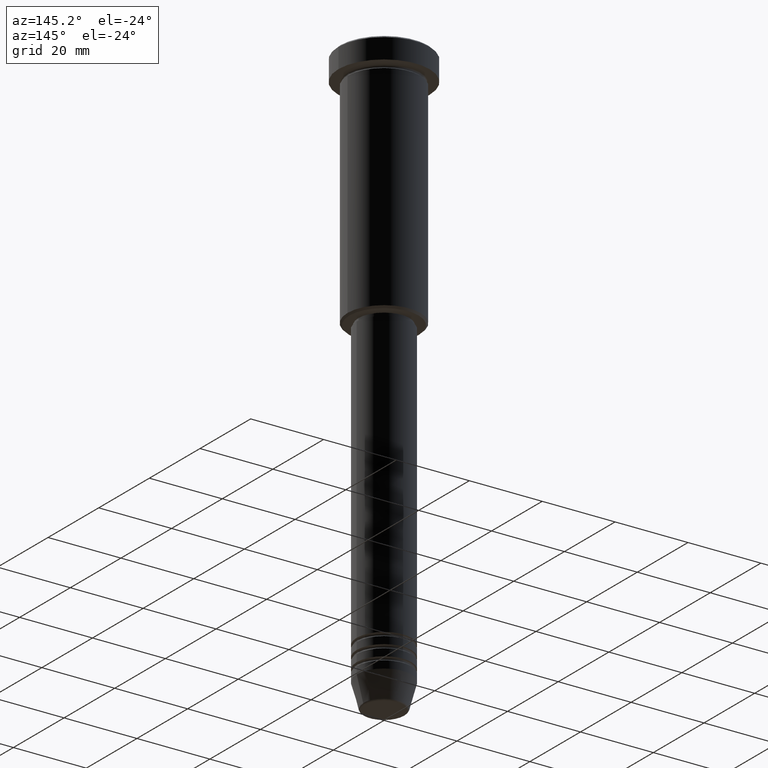
[diagram: clean part render]
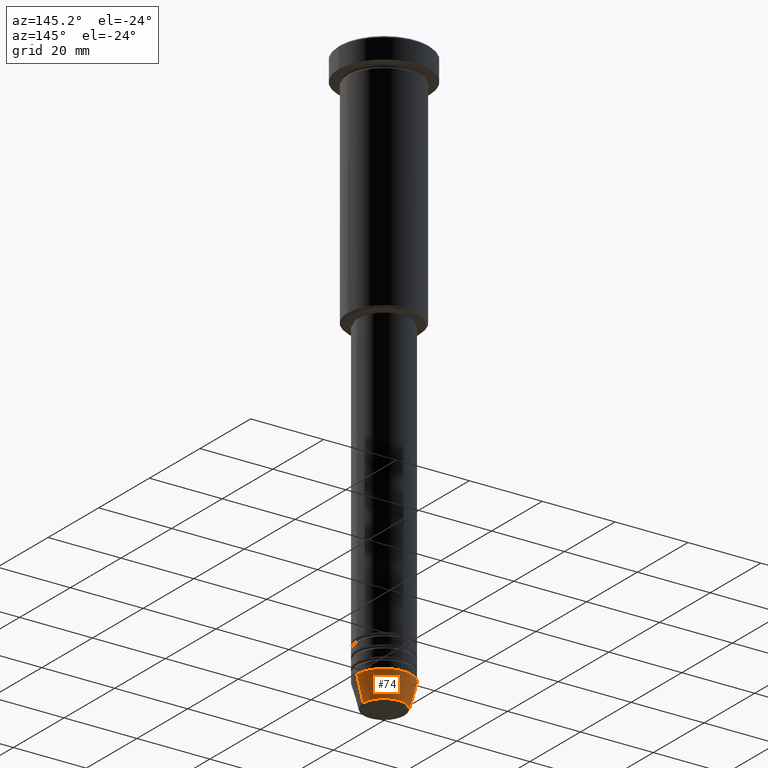
[diagram: same view with one face highlighted and labeled with its STEP entity id]
A machine part, auxiliary view. The second image highlights one B-rep face of the part: STEP entity #74.
In plain terms, the highlighted conical surface has half-angle 15 deg.
Its self-contained STEP definition (entity closure, byte-faithful):
#3 = CARTESIAN_POINT ( 'NONE',  ( 5.723655072137197486, 0.000000000000000000, -160.6294095225512137 ) ) ;
#41 = VECTOR ( 'NONE', #178, 1000.000000000000000 ) ;
#47 = EDGE_CURVE ( 'NONE', #774, #668, #1090, .T. ) ;
#51 = EDGE_LOOP ( 'NONE', ( #330, #546, #948, #878 ) ) ;
#74 = ADVANCED_FACE ( 'NONE', ( #1160 ), #198, .T. ) ;
#98 = DIRECTION ( 'NONE',  ( -0.000000000000000000, -0.000000000000000000, 1.000000000000000000 ) ) ;
#112 = VERTEX_POINT ( 'NONE', #243 ) ;
#133 = VECTOR ( 'NONE', #815, 1000.000000000000000 ) ;
#160 = EDGE_CURVE ( 'NONE', #212, #112, #909, .T. ) ;
#165 = CARTESIAN_POINT ( 'NONE',  ( -5.723655072137197486, 8.097153428560739859E-16, -160.6294095225512137 ) ) ;
#178 = DIRECTION ( 'NONE',  ( 0.2588190451025213501, 0.000000000000000000, 0.9659258262890680902 ) ) ;
#184 = CARTESIAN_POINT ( 'NONE',  ( -7.500000000000000000, 9.184850993605147944E-16, -154.0000000000000000 ) ) ;
#198 = CONICAL_SURFACE ( 'NONE', #855, 7.500000000000000000, 0.2617993877991500740 ) ;
#205 = EDGE_CURVE ( 'NONE', #774, #212, #993, .T. ) ;
#212 = VERTEX_POINT ( 'NONE', #165 ) ;
#243 = CARTESIAN_POINT ( 'NONE',  ( -7.500000000000000000, 9.184850993605147944E-16, -154.0000000000000000 ) ) ;
#269 = AXIS2_PLACEMENT_3D ( 'NONE', #456, #98, #998 ) ;
#330 = ORIENTED_EDGE ( 'NONE', *, *, #205, .T. ) ;
#352 = DIRECTION ( 'NONE',  ( -0.000000000000000000, -0.000000000000000000, 1.000000000000000000 ) ) ;
#358 = EDGE_CURVE ( 'NONE', #668, #112, #652, .T. ) ;
#366 = DIRECTION ( 'NONE',  ( 1.000000000000000000, 0.000000000000000000, 0.000000000000000000 ) ) ;
#415 = CARTESIAN_POINT ( 'NONE',  ( 7.500000000000000000, 0.000000000000000000, -154.0000000000000000 ) ) ;
#428 = CARTESIAN_POINT ( 'NONE',  ( 7.500000000000000000, 0.000000000000000000, -154.0000000000000000 ) ) ;
#454 = DIRECTION ( 'NONE',  ( 1.000000000000000000, 0.000000000000000000, 0.000000000000000000 ) ) ;
#456 = CARTESIAN_POINT ( 'NONE',  ( 0.000000000000000000, 0.000000000000000000, -160.6294095225512137 ) ) ;
#522 = CARTESIAN_POINT ( 'NONE',  ( 0.000000000000000000, 0.000000000000000000, -154.0000000000000000 ) ) ;
#546 = ORIENTED_EDGE ( 'NONE', *, *, #160, .T. ) ;
#572 = AXIS2_PLACEMENT_3D ( 'NONE', #522, #352, #366 ) ;
#652 = CIRCLE ( 'NONE', #572, 7.500000000000000000 ) ;
#668 = VERTEX_POINT ( 'NONE', #415 ) ;
#701 = DIRECTION ( 'NONE',  ( -0.000000000000000000, -0.000000000000000000, 1.000000000000000000 ) ) ;
#774 = VERTEX_POINT ( 'NONE', #3 ) ;
#815 = DIRECTION ( 'NONE',  ( -0.2588190451025213501, 3.169619151431772337E-17, 0.9659258262890680902 ) ) ;
#855 = AXIS2_PLACEMENT_3D ( 'NONE', #905, #701, #454 ) ;
#878 = ORIENTED_EDGE ( 'NONE', *, *, #47, .F. ) ;
#905 = CARTESIAN_POINT ( 'NONE',  ( 0.000000000000000000, 0.000000000000000000, -154.0000000000000000 ) ) ;
#909 = LINE ( 'NONE', #184, #133 ) ;
#948 = ORIENTED_EDGE ( 'NONE', *, *, #358, .F. ) ;
#993 = CIRCLE ( 'NONE', #269, 5.723655072137197486 ) ;
#998 = DIRECTION ( 'NONE',  ( 1.000000000000000000, 0.000000000000000000, 0.000000000000000000 ) ) ;
#1090 = LINE ( 'NONE', #428, #41 ) ;
#1160 = FACE_OUTER_BOUND ( 'NONE', #51, .T. ) ;